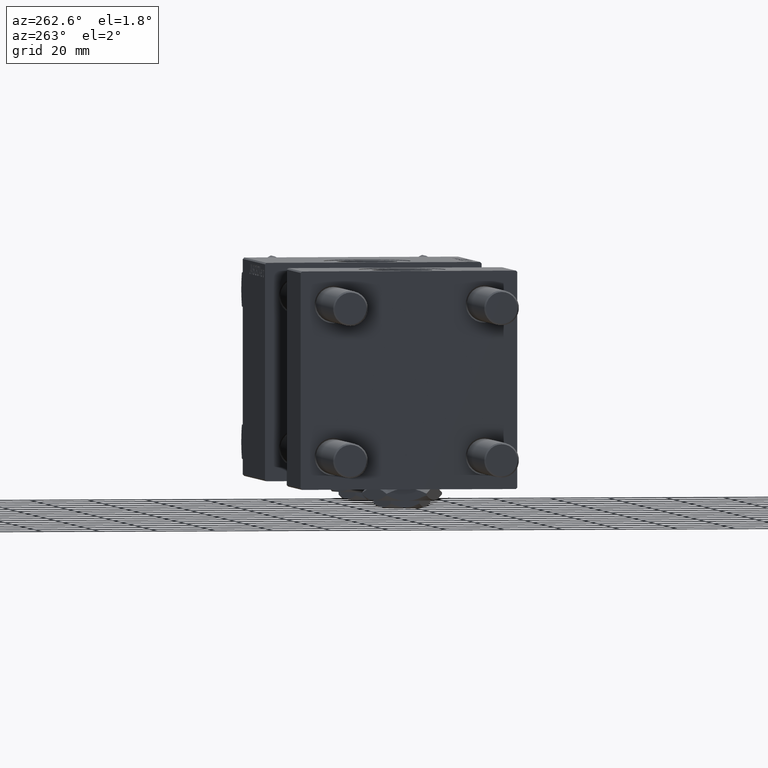
[diagram: clean part render]
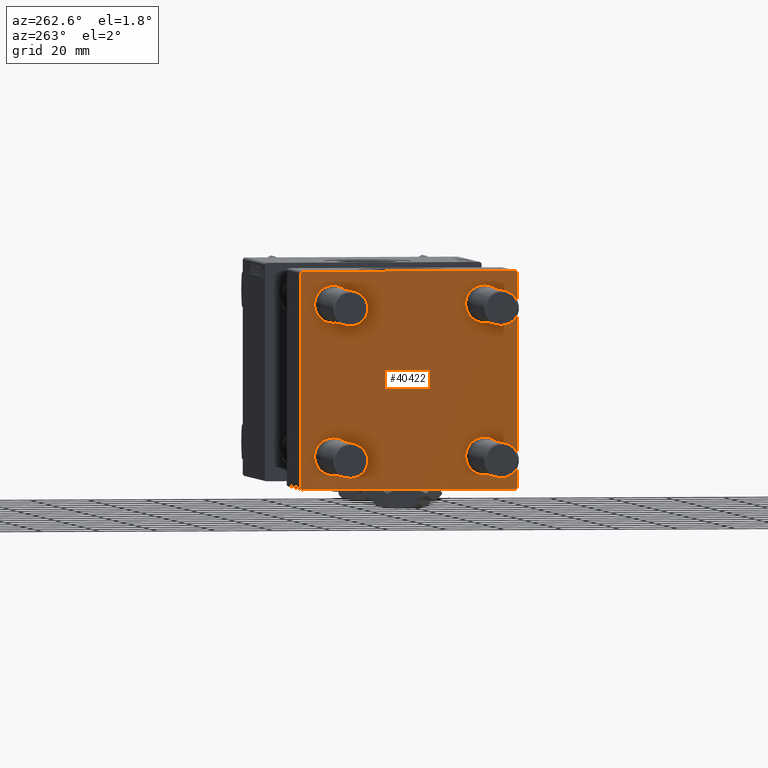
[diagram: same view with one face highlighted and labeled with its STEP entity id]
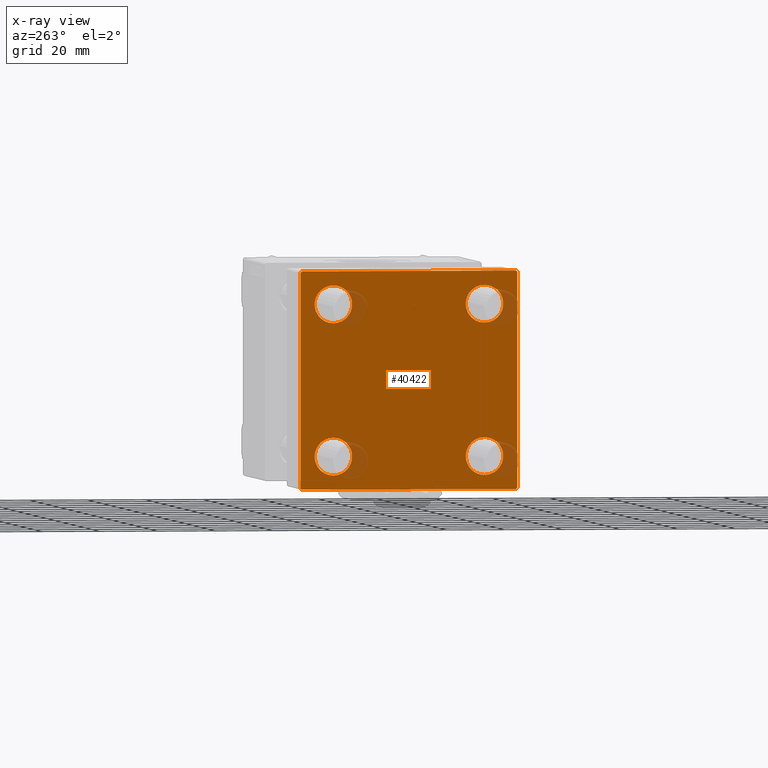
[diagram: x-ray of the same camera — body ghosted, the highlighted face saturated]
A machine part, auxiliary view. The second image highlights one B-rep face of the part: STEP entity #40422.
The next image is the same camera in x-ray: the body ghosted, the highlighted face saturated — about 5% of this face is hidden behind the body in this view.
In plain terms, the highlighted planar face has unit normal (-1, 0, 0).
Its self-contained STEP definition (entity closure, byte-faithful):
#119 = AXIS2_PLACEMENT_3D ( 'NONE', #46898, #11308, #6334 ) ;
#138 = DIRECTION ( 'NONE',  ( 1.000000000000000000, -0.000000000000000000, 0.000000000000000000 ) ) ;
#211 = VECTOR ( 'NONE', #33317, 1000.000000000000000 ) ;
#939 = LINE ( 'NONE', #48587, #50669 ) ;
#1735 = ORIENTED_EDGE ( 'NONE', *, *, #50879, .T. ) ;
#1858 = CARTESIAN_POINT ( 'NONE',  ( 0.000000000000000000, 37.49999999999999289, -37.50000000000000000 ) ) ;
#2827 = ORIENTED_EDGE ( 'NONE', *, *, #30943, .T. ) ;
#3301 = CARTESIAN_POINT ( 'NONE',  ( 0.000000000000000000, 36.99999999999999289, 37.50000000000000000 ) ) ;
#3491 = AXIS2_PLACEMENT_3D ( 'NONE', #28266, #31422, #12558 ) ;
#3655 = EDGE_LOOP ( 'NONE', ( #47403, #6798, #48544, #2827, #14089, #10698, #30571, #49383 ) ) ;
#3865 = VERTEX_POINT ( 'NONE', #37103 ) ;
#4086 = CIRCLE ( 'NONE', #19147, 6.500000000000023093 ) ;
#5289 = VERTEX_POINT ( 'NONE', #10615 ) ;
#5298 = VECTOR ( 'NONE', #8841, 1000.000000000000000 ) ;
#5591 = EDGE_CURVE ( 'NONE', #37150, #36237, #48869, .T. ) ;
#5604 = AXIS2_PLACEMENT_3D ( 'NONE', #27385, #138, #35743 ) ;
#5676 = EDGE_CURVE ( 'NONE', #41014, #27948, #12911, .T. ) ;
#5882 = LINE ( 'NONE', #9039, #35935 ) ;
#6307 = DIRECTION ( 'NONE',  ( -0.000000000000000000, 0.000000000000000000, 1.000000000000000000 ) ) ;
#6334 = DIRECTION ( 'NONE',  ( 0.000000000000000000, 0.000000000000000000, 1.000000000000000000 ) ) ;
#6798 = ORIENTED_EDGE ( 'NONE', *, *, #50010, .T. ) ;
#7002 = VERTEX_POINT ( 'NONE', #7820 ) ;
#7009 = ORIENTED_EDGE ( 'NONE', *, *, #5676, .T. ) ;
#7563 = DIRECTION ( 'NONE',  ( 0.000000000000000000, 0.000000000000000000, 1.000000000000000000 ) ) ;
#7820 = CARTESIAN_POINT ( 'NONE',  ( 0.000000000000000000, 37.49999999999999289, 37.00000000000000000 ) ) ;
#7930 = CARTESIAN_POINT ( 'NONE',  ( 0.000000000000000000, 26.14999999999999858, -32.65000000000001990 ) ) ;
#8307 = LINE ( 'NONE', #16438, #5298 ) ;
#8558 = DIRECTION ( 'NONE',  ( -0.000000000000000000, -0.7071067811865474617, -0.7071067811865474617 ) ) ;
#8841 = DIRECTION ( 'NONE',  ( 0.000000000000000000, 9.251858538542971581E-17, -1.000000000000000000 ) ) ;
#9039 = CARTESIAN_POINT ( 'NONE',  ( 0.000000000000000000, -37.24999999999975842, -37.25000000000027001 ) ) ;
#9077 = ORIENTED_EDGE ( 'NONE', *, *, #29965, .T. ) ;
#9693 = EDGE_CURVE ( 'NONE', #36314, #21943, #19748, .T. ) ;
#9906 = CARTESIAN_POINT ( 'NONE',  ( 0.000000000000000000, -26.14999999999999147, -19.64999999999999503 ) ) ;
#10548 = DIRECTION ( 'NONE',  ( 0.000000000000000000, 0.000000000000000000, 1.000000000000000000 ) ) ;
#10549 = DIRECTION ( 'NONE',  ( 0.000000000000000000, 0.000000000000000000, 1.000000000000000000 ) ) ;
#10615 = CARTESIAN_POINT ( 'NONE',  ( 0.000000000000000000, -26.14999999999999147, 19.64999999999999147 ) ) ;
#10638 = ORIENTED_EDGE ( 'NONE', *, *, #29061, .T. ) ;
#10698 = ORIENTED_EDGE ( 'NONE', *, *, #48160, .T. ) ;
#11015 = PLANE ( 'NONE',  #46740 ) ;
#11078 = ORIENTED_EDGE ( 'NONE', *, *, #43087, .T. ) ;
#11308 = DIRECTION ( 'NONE',  ( 1.000000000000000000, -0.000000000000000000, 0.000000000000000000 ) ) ;
#11628 = DIRECTION ( 'NONE',  ( -0.000000000000000000, 0.7071067811865474617, 0.7071067811865474617 ) ) ;
#11993 = ORIENTED_EDGE ( 'NONE', *, *, #5591, .T. ) ;
#12153 = VECTOR ( 'NONE', #41013, 1000.000000000000000 ) ;
#12342 = CARTESIAN_POINT ( 'NONE',  ( 0.000000000000000000, 37.49999999999999289, -36.99999999999998579 ) ) ;
#12558 = DIRECTION ( 'NONE',  ( 0.000000000000000000, 0.000000000000000000, 1.000000000000000000 ) ) ;
#12911 = CIRCLE ( 'NONE', #35514, 6.500000000000015987 ) ;
#13258 = CARTESIAN_POINT ( 'NONE',  ( 0.000000000000000000, 37.49999999999999289, 37.50000000000000000 ) ) ;
#14089 = ORIENTED_EDGE ( 'NONE', *, *, #17476, .F. ) ;
#14166 = FACE_BOUND ( 'NONE', #37674, .T. ) ;
#14865 = EDGE_CURVE ( 'NONE', #47895, #3865, #17086, .T. ) ;
#14978 = DIRECTION ( 'NONE',  ( 1.000000000000000000, -0.000000000000000000, 0.000000000000000000 ) ) ;
#16438 = CARTESIAN_POINT ( 'NONE',  ( 0.000000000000000000, -37.50000000000000711, 37.49999999999999289 ) ) ;
#16607 = CARTESIAN_POINT ( 'NONE',  ( 0.000000000000000000, 36.99999999999997868, -37.50000000000000000 ) ) ;
#17086 = LINE ( 'NONE', #44839, #211 ) ;
#17097 = AXIS2_PLACEMENT_3D ( 'NONE', #33853, #29404, #50083 ) ;
#17476 = EDGE_CURVE ( 'NONE', #37072, #34399, #8307, .T. ) ;
#18169 = CIRCLE ( 'NONE', #5604, 6.500000000000015987 ) ;
#18611 = CARTESIAN_POINT ( 'NONE',  ( 0.000000000000000000, 0.000000000000000000, 0.000000000000000000 ) ) ;
#19147 = AXIS2_PLACEMENT_3D ( 'NONE', #51090, #26000, #10548 ) ;
#19430 = CARTESIAN_POINT ( 'NONE',  ( 0.000000000000000000, 26.14999999999999858, -26.15000000000000213 ) ) ;
#19563 = VERTEX_POINT ( 'NONE', #16607 ) ;
#19748 = CIRCLE ( 'NONE', #39772, 6.500000000000023093 ) ;
#21029 = CARTESIAN_POINT ( 'NONE',  ( 0.000000000000000000, 26.14999999999999858, 32.65000000000002700 ) ) ;
#21569 = EDGE_CURVE ( 'NONE', #47895, #7002, #939, .T. ) ;
#21920 = VECTOR ( 'NONE', #11628, 1000.000000000000114 ) ;
#21943 = VERTEX_POINT ( 'NONE', #22327 ) ;
#22150 = VERTEX_POINT ( 'NONE', #12342 ) ;
#22327 = CARTESIAN_POINT ( 'NONE',  ( 0.000000000000000000, 26.14999999999999858, 19.64999999999998437 ) ) ;
#22543 = DIRECTION ( 'NONE',  ( -1.000000000000000000, 0.000000000000000000, -0.000000000000000000 ) ) ;
#22560 = EDGE_LOOP ( 'NONE', ( #24615, #10638 ) ) ;
#23041 = DIRECTION ( 'NONE',  ( 1.000000000000000000, -0.000000000000000000, 0.000000000000000000 ) ) ;
#23544 = CARTESIAN_POINT ( 'NONE',  ( 0.000000000000000000, 26.14999999999999858, 26.15000000000000213 ) ) ;
#23750 = EDGE_CURVE ( 'NONE', #7002, #22150, #30451, .T. ) ;
#24615 = ORIENTED_EDGE ( 'NONE', *, *, #9693, .T. ) ;
#25969 = AXIS2_PLACEMENT_3D ( 'NONE', #19430, #31216, #47196 ) ;
#26000 = DIRECTION ( 'NONE',  ( 1.000000000000000000, -0.000000000000000000, 0.000000000000000000 ) ) ;
#27233 = FACE_BOUND ( 'NONE', #22560, .T. ) ;
#27385 = CARTESIAN_POINT ( 'NONE',  ( 0.000000000000000000, -26.14999999999999147, -26.15000000000000924 ) ) ;
#27948 = VERTEX_POINT ( 'NONE', #7930 ) ;
#28266 = CARTESIAN_POINT ( 'NONE',  ( 0.000000000000000000, -26.14999999999999147, 26.15000000000000924 ) ) ;
#28559 = VECTOR ( 'NONE', #8558, 1000.000000000000114 ) ;
#29061 = EDGE_CURVE ( 'NONE', #21943, #36314, #4086, .T. ) ;
#29265 = CARTESIAN_POINT ( 'NONE',  ( 0.000000000000000000, -37.00000000000002132, -37.50000000000000711 ) ) ;
#29404 = DIRECTION ( 'NONE',  ( 1.000000000000000000, -0.000000000000000000, 0.000000000000000000 ) ) ;
#29965 = EDGE_CURVE ( 'NONE', #36237, #37150, #18169, .T. ) ;
#30388 = FACE_BOUND ( 'NONE', #33056, .T. ) ;
#30451 = LINE ( 'NONE', #13258, #12153 ) ;
#30571 = ORIENTED_EDGE ( 'NONE', *, *, #14865, .F. ) ;
#30943 = EDGE_CURVE ( 'NONE', #33377, #34399, #5882, .T. ) ;
#30957 = VECTOR ( 'NONE', #41138, 1000.000000000000000 ) ;
#31216 = DIRECTION ( 'NONE',  ( 1.000000000000000000, -0.000000000000000000, 0.000000000000000000 ) ) ;
#31422 = DIRECTION ( 'NONE',  ( 1.000000000000000000, -0.000000000000000000, 0.000000000000000000 ) ) ;
#33056 = EDGE_LOOP ( 'NONE', ( #7009, #11078 ) ) ;
#33317 = DIRECTION ( 'NONE',  ( 0.000000000000000000, -1.000000000000000000, -9.251858538542971581E-17 ) ) ;
#33377 = VERTEX_POINT ( 'NONE', #29265 ) ;
#33853 = CARTESIAN_POINT ( 'NONE',  ( 0.000000000000000000, -26.14999999999999147, -26.15000000000000924 ) ) ;
#34399 = VERTEX_POINT ( 'NONE', #41581 ) ;
#34874 = CARTESIAN_POINT ( 'NONE',  ( 0.000000000000000000, 26.14999999999999858, -26.15000000000000213 ) ) ;
#35438 = LINE ( 'NONE', #47485, #21920 ) ;
#35514 = AXIS2_PLACEMENT_3D ( 'NONE', #34874, #14978, #10549 ) ;
#35743 = DIRECTION ( 'NONE',  ( 0.000000000000000000, 0.000000000000000000, 1.000000000000000000 ) ) ;
#35935 = VECTOR ( 'NONE', #49361, 1000.000000000000000 ) ;
#35955 = CARTESIAN_POINT ( 'NONE',  ( 0.000000000000000000, -26.14999999999999147, -32.65000000000002700 ) ) ;
#36047 = ORIENTED_EDGE ( 'NONE', *, *, #46549, .T. ) ;
#36237 = VERTEX_POINT ( 'NONE', #35955 ) ;
#36314 = VERTEX_POINT ( 'NONE', #21029 ) ;
#36933 = CIRCLE ( 'NONE', #3491, 6.500000000000023093 ) ;
#37072 = VERTEX_POINT ( 'NONE', #45253 ) ;
#37103 = CARTESIAN_POINT ( 'NONE',  ( 0.000000000000000000, -37.00000000000000711, 37.49999999999999289 ) ) ;
#37150 = VERTEX_POINT ( 'NONE', #9906 ) ;
#37674 = EDGE_LOOP ( 'NONE', ( #36047, #1735 ) ) ;
#37719 = LINE ( 'NONE', #1858, #30957 ) ;
#38588 = CIRCLE ( 'NONE', #119, 6.500000000000023093 ) ;
#39772 = AXIS2_PLACEMENT_3D ( 'NONE', #23544, #23041, #7563 ) ;
#40422 = ADVANCED_FACE ( 'NONE', ( #14166, #42188, #30388, #27233, #47137 ), #11015, .T. ) ;
#41013 = DIRECTION ( 'NONE',  ( 0.000000000000000000, 0.000000000000000000, -1.000000000000000000 ) ) ;
#41014 = VERTEX_POINT ( 'NONE', #43753 ) ;
#41015 = EDGE_LOOP ( 'NONE', ( #11993, #9077 ) ) ;
#41138 = DIRECTION ( 'NONE',  ( 0.000000000000000000, -1.000000000000000000, -9.251858538542972814E-17 ) ) ;
#41581 = CARTESIAN_POINT ( 'NONE',  ( 0.000000000000000000, -37.50000000000000000, -37.00000000000003553 ) ) ;
#42188 = FACE_BOUND ( 'NONE', #41015, .T. ) ;
#42514 = VERTEX_POINT ( 'NONE', #51236 ) ;
#43087 = EDGE_CURVE ( 'NONE', #27948, #41014, #49364, .T. ) ;
#43195 = EDGE_CURVE ( 'NONE', #19563, #33377, #37719, .T. ) ;
#43753 = CARTESIAN_POINT ( 'NONE',  ( 0.000000000000000000, 26.14999999999999858, -19.64999999999998792 ) ) ;
#44438 = CARTESIAN_POINT ( 'NONE',  ( 0.000000000000000000, 37.24999999999998579, -37.24999999999998579 ) ) ;
#44663 = DIRECTION ( 'NONE',  ( 0.000000000000000000, 0.7071067811865474617, -0.7071067811865474617 ) ) ;
#44839 = CARTESIAN_POINT ( 'NONE',  ( 0.000000000000000000, 37.49999999999999289, 37.50000000000000000 ) ) ;
#45253 = CARTESIAN_POINT ( 'NONE',  ( 0.000000000000000000, -37.50000000000000711, 36.99999999999999289 ) ) ;
#46549 = EDGE_CURVE ( 'NONE', #42514, #5289, #36933, .T. ) ;
#46740 = AXIS2_PLACEMENT_3D ( 'NONE', #18611, #22543, #6307 ) ;
#46898 = CARTESIAN_POINT ( 'NONE',  ( 0.000000000000000000, -26.14999999999999147, 26.15000000000000924 ) ) ;
#47137 = FACE_OUTER_BOUND ( 'NONE', #3655, .T. ) ;
#47196 = DIRECTION ( 'NONE',  ( 0.000000000000000000, 0.000000000000000000, 1.000000000000000000 ) ) ;
#47403 = ORIENTED_EDGE ( 'NONE', *, *, #23750, .T. ) ;
#47485 = CARTESIAN_POINT ( 'NONE',  ( -0.000000000000000000, -37.25000000000000000, 37.25000000000000000 ) ) ;
#47895 = VERTEX_POINT ( 'NONE', #3301 ) ;
#48110 = LINE ( 'NONE', #44438, #28559 ) ;
#48160 = EDGE_CURVE ( 'NONE', #37072, #3865, #35438, .T. ) ;
#48544 = ORIENTED_EDGE ( 'NONE', *, *, #43195, .T. ) ;
#48587 = CARTESIAN_POINT ( 'NONE',  ( 0.000000000000000000, 37.24999999999999289, 37.24999999999999289 ) ) ;
#48869 = CIRCLE ( 'NONE', #17097, 6.500000000000015987 ) ;
#49361 = DIRECTION ( 'NONE',  ( 0.000000000000000000, -0.7071067811865524577, 0.7071067811865426878 ) ) ;
#49364 = CIRCLE ( 'NONE', #25969, 6.500000000000015987 ) ;
#49383 = ORIENTED_EDGE ( 'NONE', *, *, #21569, .T. ) ;
#50010 = EDGE_CURVE ( 'NONE', #22150, #19563, #48110, .T. ) ;
#50083 = DIRECTION ( 'NONE',  ( 0.000000000000000000, 0.000000000000000000, 1.000000000000000000 ) ) ;
#50669 = VECTOR ( 'NONE', #44663, 1000.000000000000114 ) ;
#50879 = EDGE_CURVE ( 'NONE', #5289, #42514, #38588, .T. ) ;
#51090 = CARTESIAN_POINT ( 'NONE',  ( 0.000000000000000000, 26.14999999999999858, 26.15000000000000213 ) ) ;
#51236 = CARTESIAN_POINT ( 'NONE',  ( 0.000000000000000000, -26.14999999999999147, 32.65000000000003411 ) ) ;